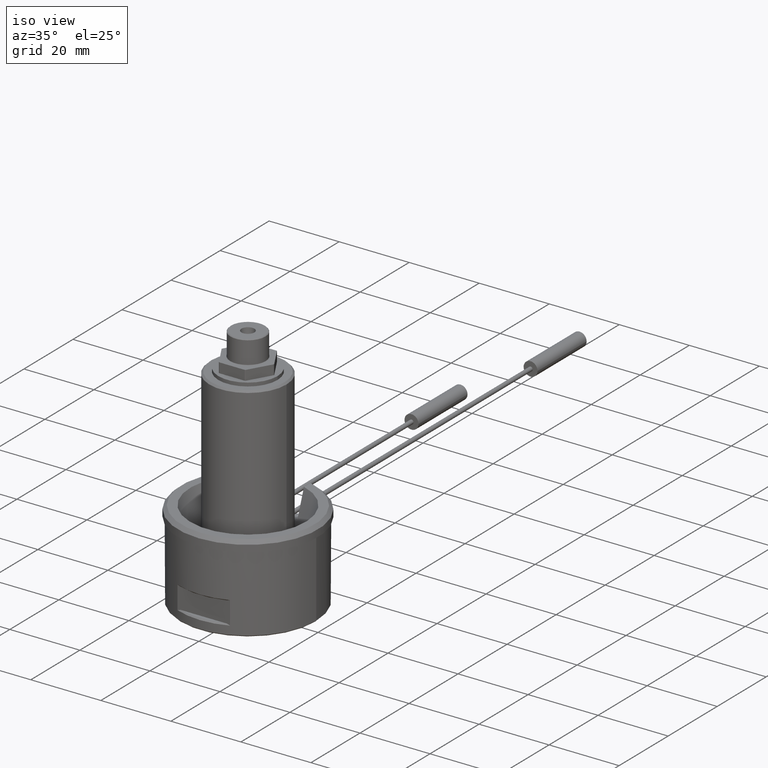
[diagram: clean part render]
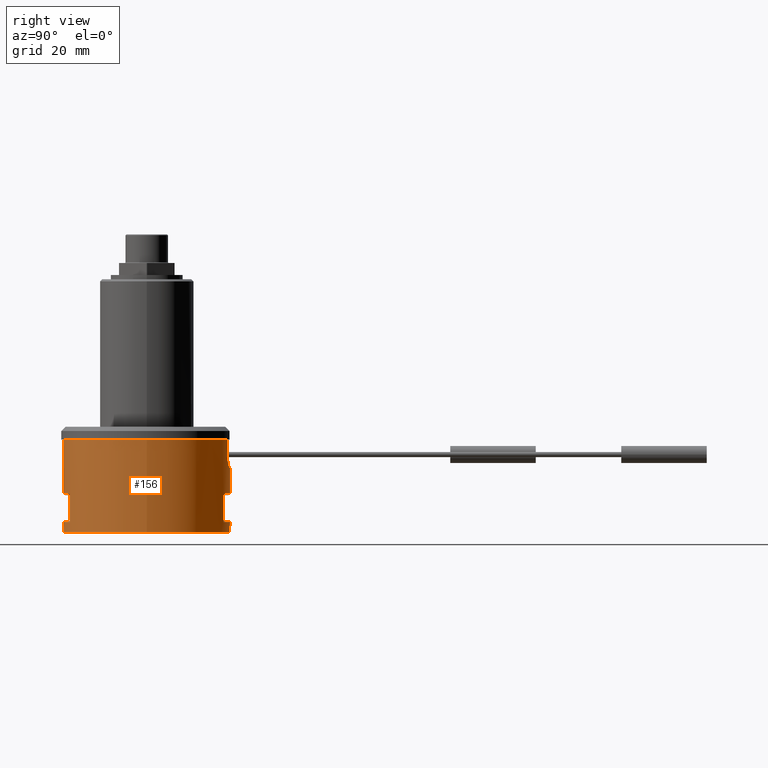
[diagram: tour spotlight — one face highlighted and labeled with its STEP entity id]
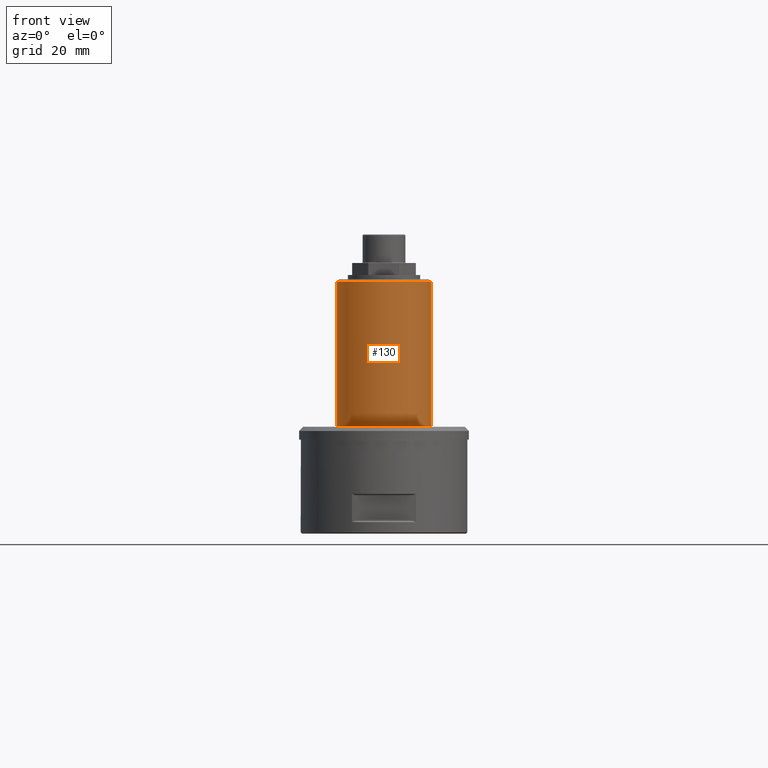
[diagram: tour spotlight — one face highlighted and labeled with its STEP entity id]
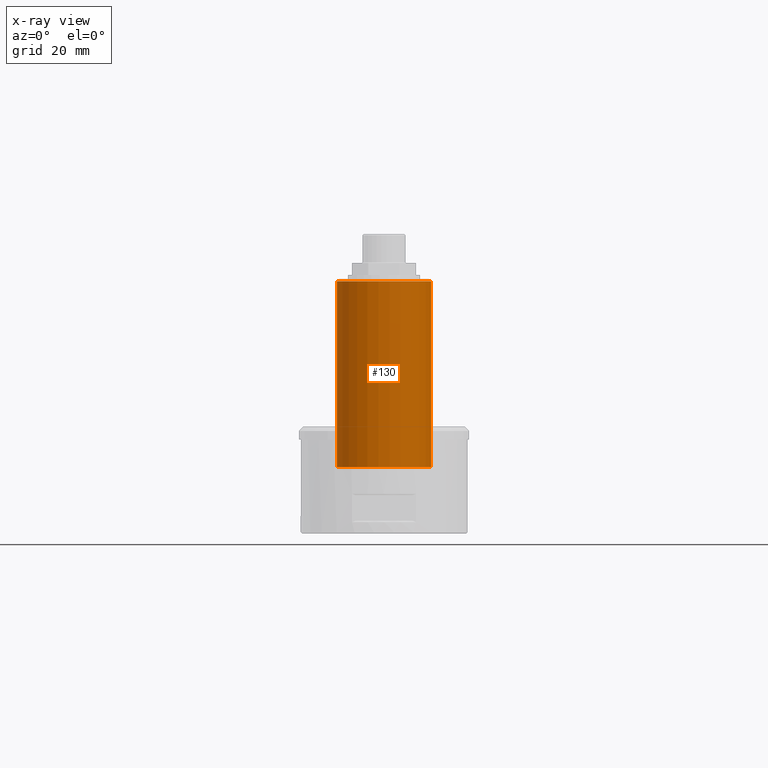
[diagram: x-ray of the same camera — body ghosted, this tour face saturated]
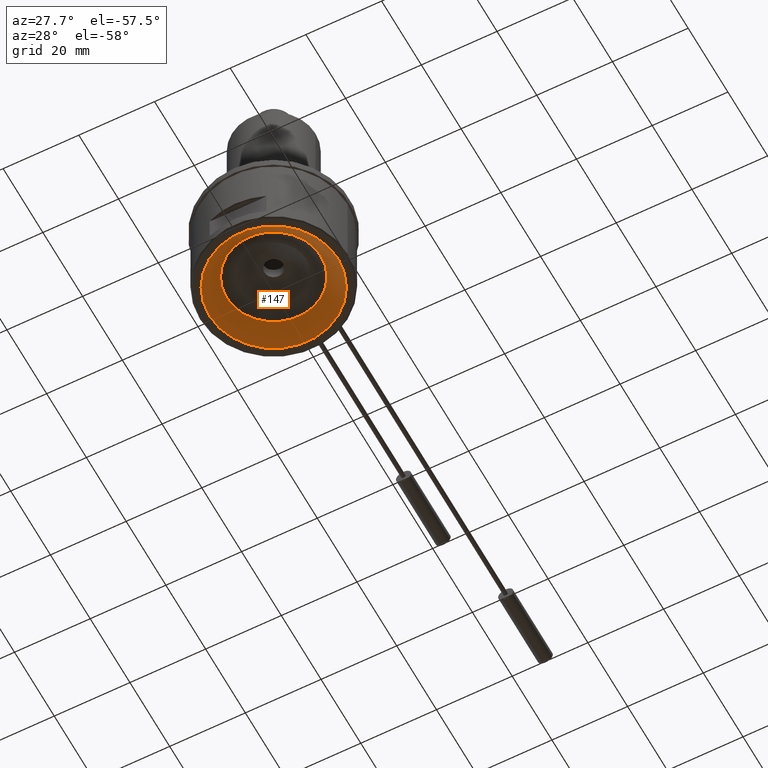
[diagram: tour spotlight — one face highlighted and labeled with its STEP entity id]
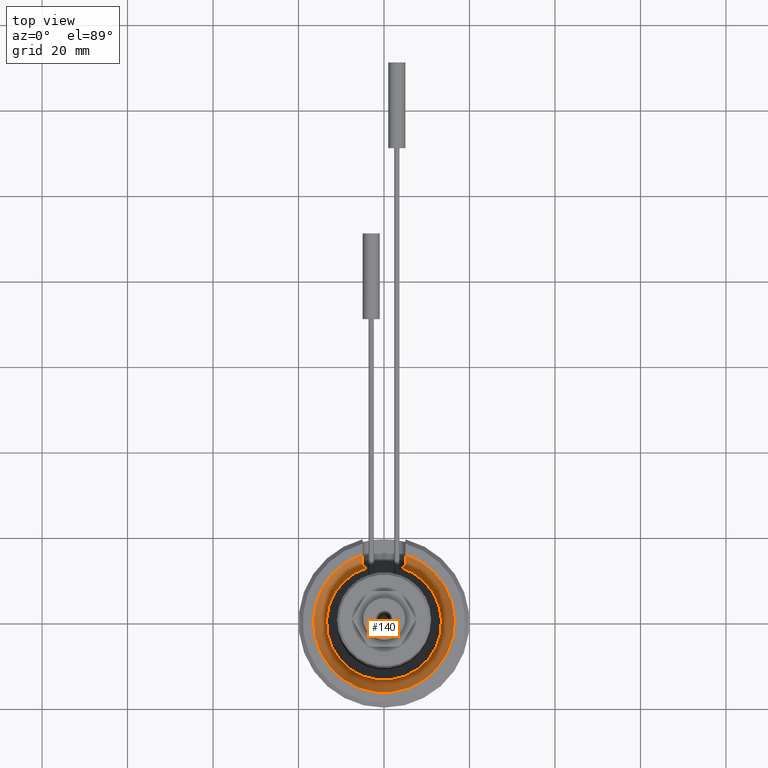
[diagram: tour spotlight — one face highlighted and labeled with its STEP entity id]
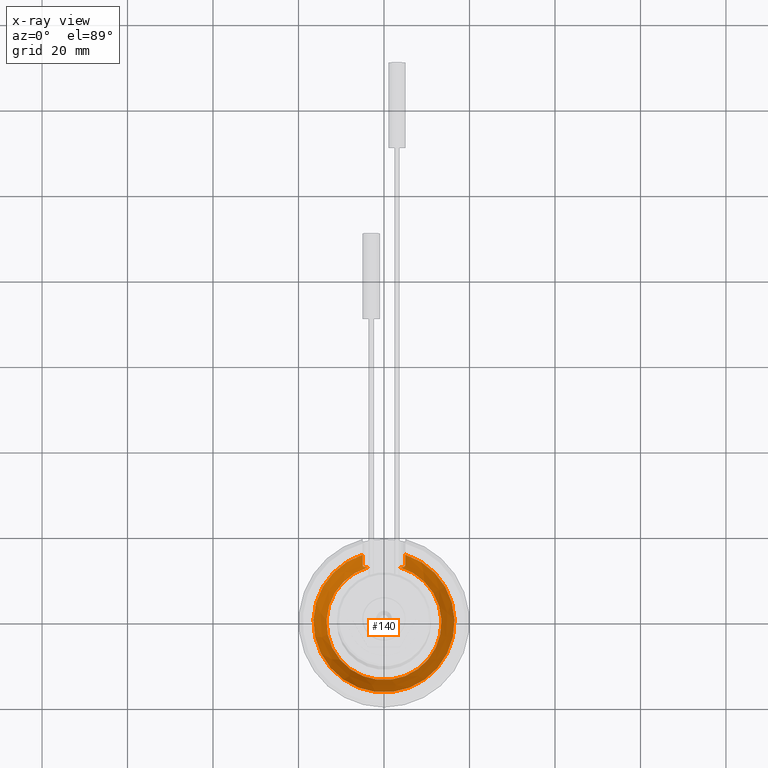
[diagram: x-ray of the same camera — body ghosted, this tour face saturated]
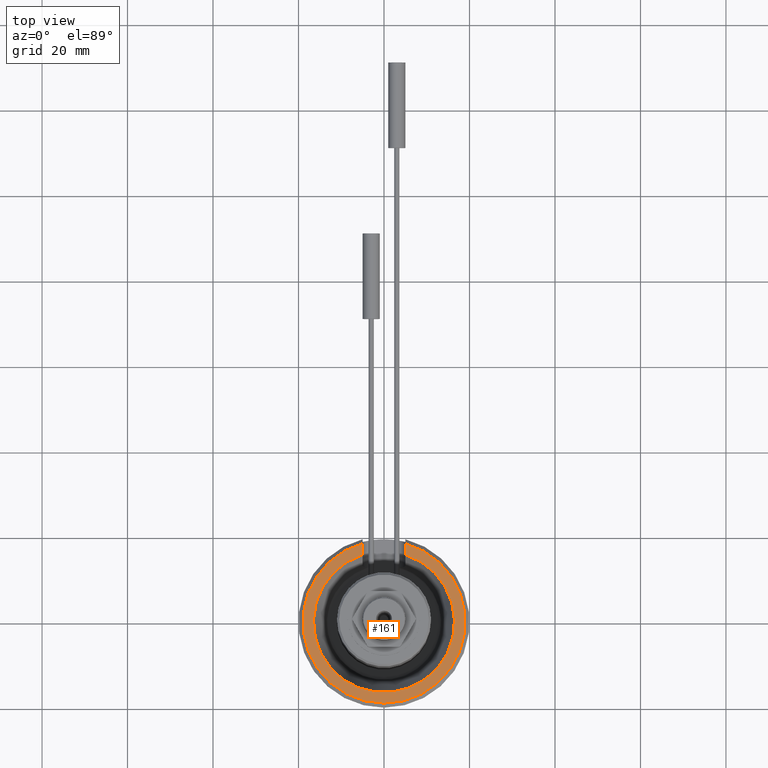
[diagram: tour spotlight — one face highlighted and labeled with its STEP entity id]
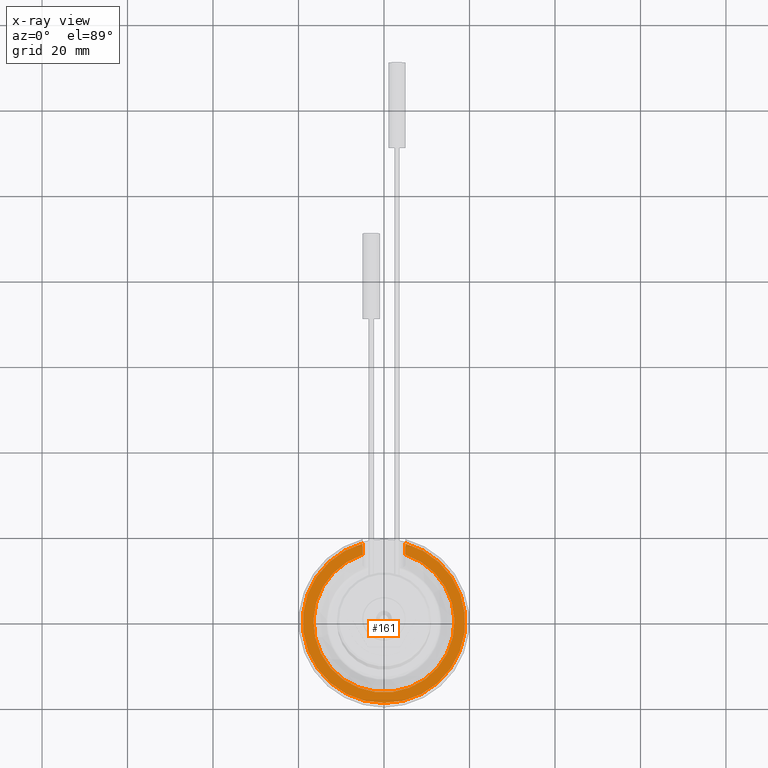
[diagram: x-ray of the same camera — body ghosted, this tour face saturated]
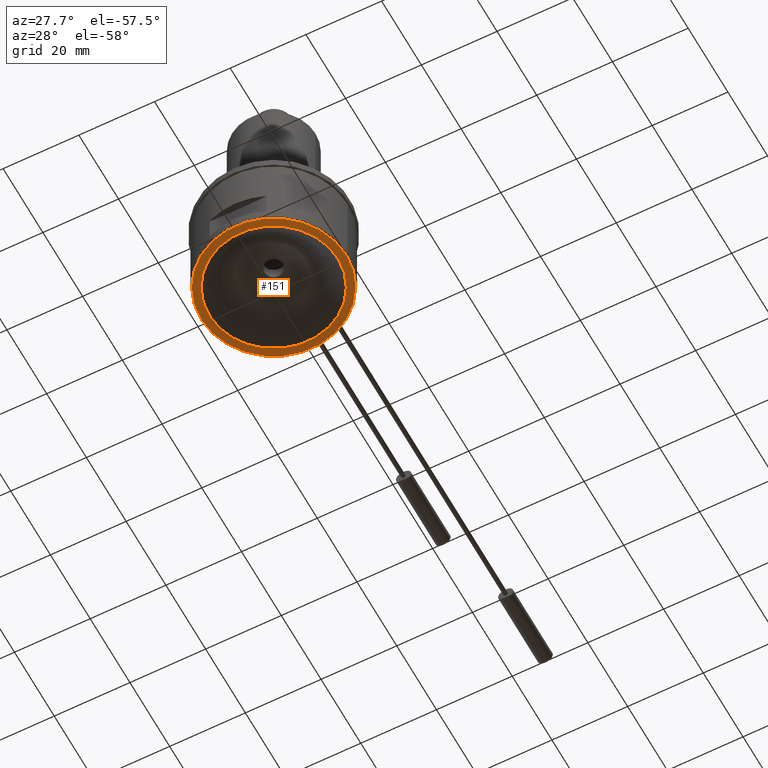
[diagram: tour spotlight — one face highlighted and labeled with its STEP entity id]
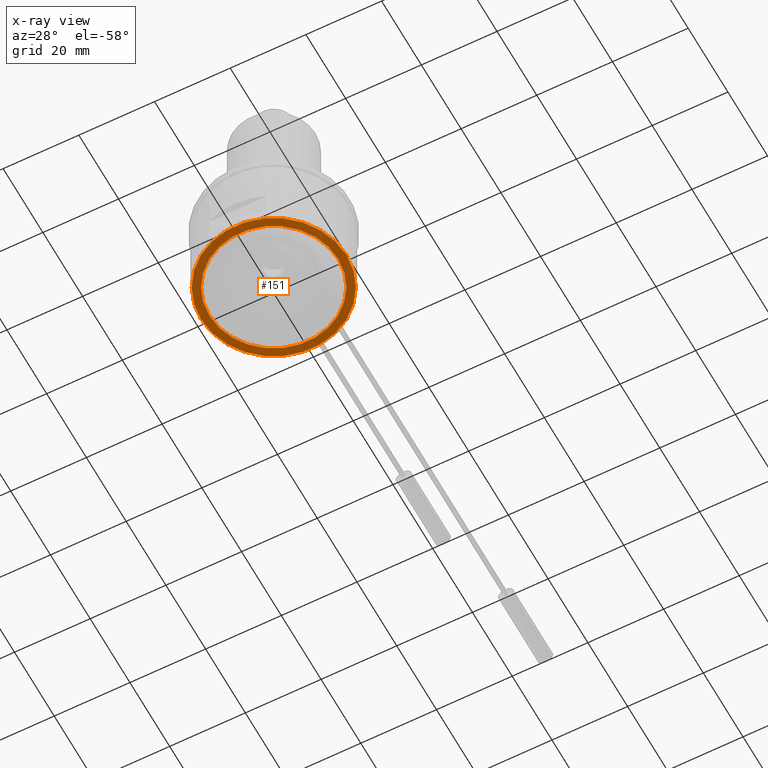
[diagram: x-ray of the same camera — body ghosted, this tour face saturated]
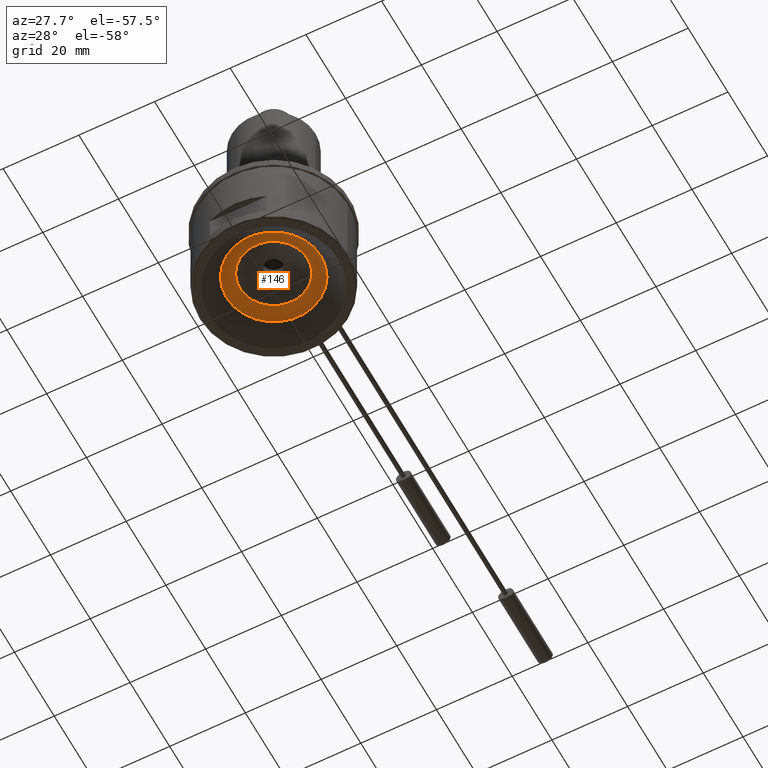
[diagram: tour spotlight — one face highlighted and labeled with its STEP entity id]
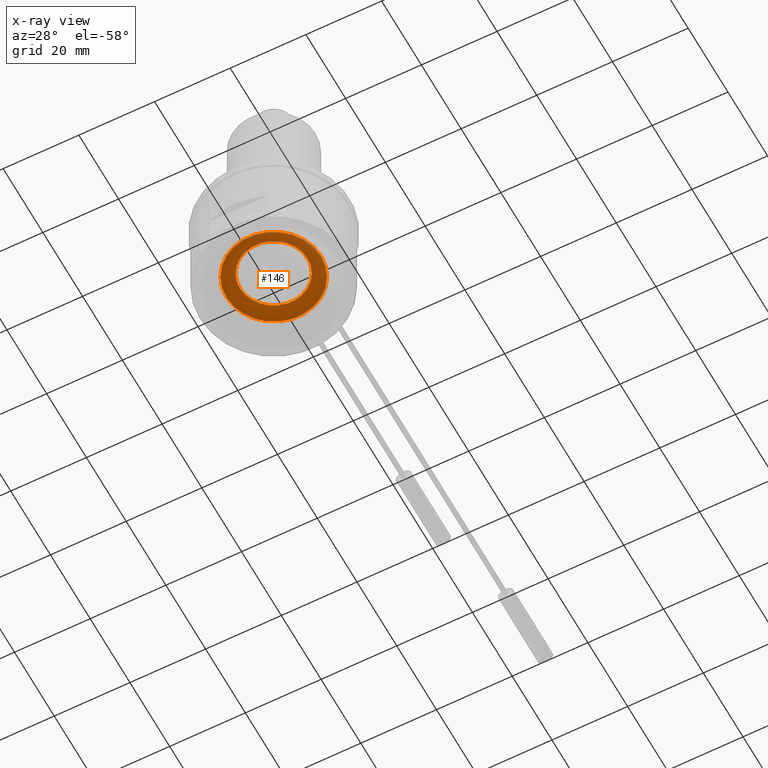
[diagram: x-ray of the same camera — body ghosted, this tour face saturated]
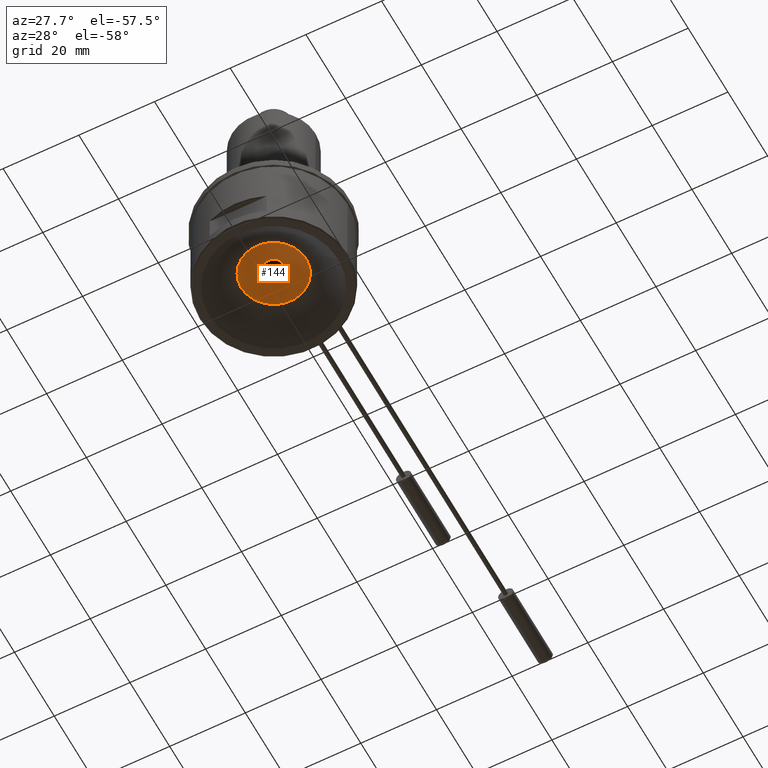
[diagram: tour spotlight — one face highlighted and labeled with its STEP entity id]
A machine part: a face-by-face anatomy tour. The part has 63 B-rep faces; the first image is the clean iso view, then the 8 largest visible faces are spotlighted one at a time (largest first), each with its STEP entity span.

Face 1 — right view, entity #156. In plain terms, the highlighted cylindrical surface (bore or boss wall) has radius 19.5 mm, axis along (0, 0, 1).
Definition (entity closure, byte-faithful):
#66=B_SPLINE_CURVE_WITH_KNOTS('',3,(#1736,#1737,#1738,#1739,#1740,#1741,
#1742,#1743,#1744,#1745,#1746,#1747,#1748,#1749,#1750,#1751),
 .UNSPECIFIED.,.F.,.F.,(4,3,3,3,3,4),(0.,0.208859270447399,0.417456296238441,
0.630055906062743,0.847987775070674,1.),.UNSPECIFIED.);
#67=B_SPLINE_CURVE_WITH_KNOTS('',3,(#1752,#1753,#1754,#1755,#1756,#1757,
#1758,#1759,#1760,#1761,#1762,#1763,#1764,#1765,#1766,#1767),
 .UNSPECIFIED.,.F.,.F.,(4,3,3,3,3,4),(0.,0.215976202929395,0.431772849622374,
0.65007420206776,0.867184707585039,1.),.UNSPECIFIED.);
#80=CYLINDRICAL_SURFACE('',#1030,19.5);
#156=ADVANCED_FACE('',(#338,#339,#340,#341),#80,.T.);
#242=LINE('',#1664,#286);
#243=LINE('',#1676,#287);
#245=LINE('',#1695,#289);
#247=LINE('',#1710,#291);
#250=LINE('',#1734,#294);
#251=LINE('',#1769,#295);
#286=VECTOR('',#1220,1.);
#287=VECTOR('',#1221,1.);
#289=VECTOR('',#1233,1.);
#291=VECTOR('',#1235,1.);
#294=VECTOR('',#1252,1.);
#295=VECTOR('',#1253,1.);
#338=FACE_BOUND('',#412,.T.);
#339=FACE_BOUND('',#413,.T.);
#340=FACE_BOUND('',#414,.T.);
#341=FACE_BOUND('',#415,.T.);
#412=EDGE_LOOP('',(#575));
#413=EDGE_LOOP('',(#576,#577,#578,#579,#580,#581));
#414=EDGE_LOOP('',(#582,#583,#584,#585));
#415=EDGE_LOOP('',(#586,#587,#588,#589));
#575=ORIENTED_EDGE('',*,*,#869,.T.);
#576=ORIENTED_EDGE('',*,*,#870,.F.);
#577=ORIENTED_EDGE('',*,*,#871,.T.);
#578=ORIENTED_EDGE('',*,*,#872,.T.);
#579=ORIENTED_EDGE('',*,*,#866,.T.);
#580=ORIENTED_EDGE('',*,*,#873,.T.);
#581=ORIENTED_EDGE('',*,*,#874,.T.);
#582=ORIENTED_EDGE('',*,*,#875,.T.);
#583=ORIENTED_EDGE('',*,*,#862,.T.);
#584=ORIENTED_EDGE('',*,*,#876,.T.);
#585=ORIENTED_EDGE('',*,*,#858,.T.);
#586=ORIENTED_EDGE('',*,*,#852,.F.);
#587=ORIENTED_EDGE('',*,*,#877,.T.);
#588=ORIENTED_EDGE('',*,*,#849,.F.);
#589=ORIENTED_EDGE('',*,*,#878,.T.);
#748=VERTEX_POINT('',#1665);
#749=VERTEX_POINT('',#1666);
#750=VERTEX_POINT('',#1675);
#751=VERTEX_POINT('',#1677);
#755=VERTEX_POINT('',#1696);
#756=VERTEX_POINT('',#1697);
#759=VERTEX_POINT('',#1709);
#760=VERTEX_POINT('',#1711);
#761=VERTEX_POINT('',#1724);
#762=VERTEX_POINT('',#1725);
#763=VERTEX_POINT('',#1730);
#764=VERTEX_POINT('',#1732);
#765=VERTEX_POINT('',#1733);
#766=VERTEX_POINT('',#1735);
#767=VERTEX_POINT('',#1768);
#849=EDGE_CURVE('',#748,#749,#242,.T.);
#852=EDGE_CURVE('',#750,#751,#243,.T.);
#858=EDGE_CURVE('',#755,#756,#245,.T.);
#862=EDGE_CURVE('',#760,#759,#247,.T.);
#866=EDGE_CURVE('',#761,#762,#936,.T.);
#869=EDGE_CURVE('',#763,#763,#937,.T.);
#870=EDGE_CURVE('',#764,#765,#938,.T.);
#871=EDGE_CURVE('',#764,#766,#250,.T.);
#872=EDGE_CURVE('',#766,#761,#66,.T.);
#873=EDGE_CURVE('',#762,#767,#67,.T.);
#874=EDGE_CURVE('',#767,#765,#251,.T.);
#875=EDGE_CURVE('',#756,#760,#939,.T.);
#876=EDGE_CURVE('',#759,#755,#940,.T.);
#877=EDGE_CURVE('',#750,#749,#941,.T.);
#878=EDGE_CURVE('',#748,#751,#942,.T.);
#936=CIRCLE('',#1022,19.5);
#937=CIRCLE('',#1024,19.5);
#938=CIRCLE('',#1025,19.5000000000001);
#939=CIRCLE('',#1026,19.5);
#940=CIRCLE('',#1027,19.5);
#941=CIRCLE('',#1028,19.5);
#942=CIRCLE('',#1029,19.5);
#1022=AXIS2_PLACEMENT_3D('',#1723,#1242,#1243);
#1024=AXIS2_PLACEMENT_3D('',#1729,#1248,#1249);
#1025=AXIS2_PLACEMENT_3D('',#1731,#1250,#1251);
#1026=AXIS2_PLACEMENT_3D('',#1770,#1254,#1255);
#1027=AXIS2_PLACEMENT_3D('',#1771,#1256,#1257);
#1028=AXIS2_PLACEMENT_3D('',#1772,#1258,#1259);
#1029=AXIS2_PLACEMENT_3D('',#1773,#1260,#1261);
#1030=AXIS2_PLACEMENT_3D('',#1774,#1262,#1263);
#1220=DIRECTION('',(0.,0.,1.));
#1221=DIRECTION('',(0.,0.,-1.));
#1233=DIRECTION('',(0.,0.,1.));
#1235=DIRECTION('',(0.,0.,-1.));
#1242=DIRECTION('',(0.,0.,-1.));
#1243=DIRECTION('',(-1.,0.,0.));
#1248=DIRECTION('',(0.,0.,1.));
#1249=DIRECTION('',(1.,0.,0.));
#1250=DIRECTION('',(0.,0.,1.));
#1251=DIRECTION('',(1.,0.,0.));
#1252=DIRECTION('',(0.,0.,-1.));
#1253=DIRECTION('',(0.,0.,1.));
#1254=DIRECTION('',(0.,0.,1.));
#1255=DIRECTION('',(1.,0.,0.));
#1256=DIRECTION('',(0.,0.,-1.));
#1257=DIRECTION('',(-1.,0.,0.));
#1258=DIRECTION('',(0.,0.,1.));
#1259=DIRECTION('',(-1.,0.,0.));
#1260=DIRECTION('',(0.,0.,-1.));
#1261=DIRECTION('',(1.,0.,0.));
#1262=DIRECTION('',(0.,0.,1.));
#1263=DIRECTION('',(1.,0.,0.));
#1664=CARTESIAN_POINT('',(-7.50000000000002,18.,0.));
#1665=CARTESIAN_POINT('',(-7.50000000000002,18.,2.69999999999999));
#1666=CARTESIAN_POINT('',(-7.50000000000002,18.,9.29999999998456));
#1675=CARTESIAN_POINT('',(7.50000000000002,18.,9.29999999998456));
#1676=CARTESIAN_POINT('',(7.50000000000002,18.,0.));
#1677=CARTESIAN_POINT('',(7.50000000000002,18.,2.69999999999999));
#1695=CARTESIAN_POINT('',(-7.50000000000002,-18.,0.));
#1696=CARTESIAN_POINT('',(-7.50000000000002,-18.,2.69999999999999));
#1697=CARTESIAN_POINT('',(-7.50000000000002,-18.,9.29999999998456));
#1709=CARTESIAN_POINT('',(7.50000000000002,-18.,2.69999999999999));
#1710=CARTESIAN_POINT('',(7.50000000000002,-18.,0.));
#1711=CARTESIAN_POINT('',(7.50000000000002,-18.,9.29999999998456));
#1723=CARTESIAN_POINT('',(0.,0.,15.5));
#1724=CARTESIAN_POINT('',(-2.,19.3971647412708,15.5));
#1725=CARTESIAN_POINT('',(2.,19.3971647412708,15.5));
#1729=CARTESIAN_POINT('',(0.,0.,0.29999999999999));
#1730=CARTESIAN_POINT('',(19.5,0.,0.29999999999999));
#1731=CARTESIAN_POINT('',(0.,0.,22.));
#1732=CARTESIAN_POINT('',(-5.,18.8480768249708,22.));
#1733=CARTESIAN_POINT('',(5.,18.8480768249708,22.));
#1734=CARTESIAN_POINT('',(-5.,18.8480768249708,0.));
#1735=CARTESIAN_POINT('',(-5.,18.8480768249708,18.5));
#1736=CARTESIAN_POINT('',(-5.,18.8480768249708,18.5));
#1737=CARTESIAN_POINT('',(-5.,18.8480768249708,18.1712240801533));
#1738=CARTESIAN_POINT('',(-4.94431953548575,18.8630780703131,17.8379299438462));
#1739=CARTESIAN_POINT('',(-4.83815628129102,18.8902684945928,17.5279563163272));
#1740=CARTESIAN_POINT('',(-4.73206839705938,18.9174396151944,17.2182027527186));
#1741=CARTESIAN_POINT('',(-4.57289213055614,18.9573288779685,16.9232723225049));
#1742=CARTESIAN_POINT('',(-4.37398378364309,19.0031120046278,16.6658241646452));
#1743=CARTESIAN_POINT('',(-4.17127404465591,19.049770105201,16.4034558442987));
#1744=CARTESIAN_POINT('',(-3.92191579445692,19.1036067398235,16.1728608493464));
#1745=CARTESIAN_POINT('',(-3.64542788517535,19.1562223711771,15.9915010315555));
#1746=CARTESIAN_POINT('',(-3.36220663328017,19.210119357197,15.8057245367652));
#1747=CARTESIAN_POINT('',(-3.04260585593299,19.264051176149,15.6665471574642));
#1748=CARTESIAN_POINT('',(-2.71250280399398,19.3104202061562,15.5858380699933));
#1749=CARTESIAN_POINT('',(-2.48058686127955,19.3429970552453,15.5291354009434));
#1750=CARTESIAN_POINT('',(-2.23968870841728,19.3724509532905,15.5));
#1751=CARTESIAN_POINT('',(-2.,19.3971647412708,15.5));
#1752=CARTESIAN_POINT('',(2.,19.3971647412708,15.5));
#1753=CARTESIAN_POINT('',(2.33818486907352,19.3622952256912,15.5));
#1754=CARTESIAN_POINT('',(2.68002074798442,19.3176233036949,15.558789140847));
#1755=CARTESIAN_POINT('',(2.99726822234027,19.2682740068577,15.670608529611));
#1756=CARTESIAN_POINT('',(3.31435435932037,19.2189498067879,15.7823710522114));
#1757=CARTESIAN_POINT('',(3.61568525744173,19.1637201320182,15.9500573681033));
#1758=CARTESIAN_POINT('',(3.87746398049628,19.1106062980732,16.1601006427756));
#1759=CARTESIAN_POINT('',(4.14216329357637,19.0568998883381,16.3724873099353));
#1760=CARTESIAN_POINT('',(4.37381764980178,19.004042380216,16.6342027021801));
#1761=CARTESIAN_POINT('',(4.55286851589345,18.9610492398756,16.9242898932355));
#1762=CARTESIAN_POINT('',(4.73086724917875,18.9183087344114,17.2126724834862));
#1763=CARTESIAN_POINT('',(4.86180379042969,18.8843408016981,17.5375010705628));
#1764=CARTESIAN_POINT('',(4.93331544810629,18.8656406912004,17.8709845137829));
#1765=CARTESIAN_POINT('',(4.97747479356462,18.854093138446,18.0769147222586));
#1766=CARTESIAN_POINT('',(5.,18.8480768249708,18.2890719446617));
#1767=CARTESIAN_POINT('',(5.,18.8480768249708,18.5));
#1768=CARTESIAN_POINT('',(5.,18.8480768249708,18.5));
#1769=CARTESIAN_POINT('',(5.,18.8480768249708,0.));
#1770=CARTESIAN_POINT('',(0.,0.,9.29999999998456));
#1771=CARTESIAN_POINT('',(0.,0.,2.69999999999999));
#1772=CARTESIAN_POINT('',(0.,0.,9.29999999998456));
#1773=CARTESIAN_POINT('',(0.,0.,2.69999999999999));
#1774=CARTESIAN_POINT('',(0.,0.,0.));

Face 2 — front view, entity #130. An x-ray twin of the same camera follows (body ghosted, this face saturated) — the face is partly hidden behind the body. In plain terms, the highlighted cylindrical surface (bore or boss wall) has radius 11 mm, axis along (0, 0, 1).
Definition (entity closure, byte-faithful):
#50=B_SPLINE_CURVE_WITH_KNOTS('',3,(#1412,#1413,#1414,#1415,#1416,#1417,
#1418,#1419,#1420,#1421,#1422,#1423,#1424,#1425,#1426,#1427,#1428,#1429,
#1430,#1431,#1432,#1433,#1434,#1435,#1436,#1437,#1438,#1439,#1440,#1441,
#1442,#1443,#1444,#1445,#1446,#1447,#1448,#1449,#1450,#1451,#1452,#1453,
#1454,#1455,#1456,#1457,#1458,#1459,#1460,#1461,#1462,#1463,#1464,#1465,
#1466,#1467,#1468,#1469),.UNSPECIFIED.,.T.,.F.,(1,3,3,3,3,3,3,3,3,3,3,3,
3,3,3,3,3,3,3,3,3,1),(-0.033476065960702,0.,0.0569276184208162,0.11388798171723,
0.170189178404946,0.223994773815215,0.275023318518955,0.32479447673683,
0.375435942673917,0.428444094596675,0.484019015101014,0.541000746772207,
0.597629402742916,0.652691800182208,0.705997861087889,0.758026453272304,
0.809447894307852,0.860920961920237,0.913080990616137,0.966523934039298,
1.,1.05692761842082),.UNSPECIFIED.);
#51=B_SPLINE_CURVE_WITH_KNOTS('',3,(#1471,#1472,#1473,#1474,#1475,#1476,
#1477,#1478,#1479,#1480,#1481,#1482,#1483,#1484,#1485,#1486,#1487,#1488,
#1489,#1490,#1491,#1492,#1493,#1494,#1495,#1496,#1497,#1498,#1499,#1500,
#1501,#1502,#1503,#1504,#1505,#1506,#1507,#1508,#1509,#1510,#1511,#1512,
#1513,#1514,#1515,#1516,#1517,#1518,#1519,#1520,#1521,#1522,#1523,#1524,
#1525,#1526,#1527,#1528),.UNSPECIFIED.,.T.,.F.,(1,3,3,3,3,3,3,3,3,3,3,3,
3,3,3,3,3,3,3,3,3,1),(-0.0368720802815016,0.,0.0557742989657597,0.111633516855791,
0.166177446941804,0.219065034009753,0.270861475775484,0.322242468032284,
0.37385818799038,0.426338903139108,0.480247896041717,0.535857703218907,
0.592750324818179,0.649530104049342,0.704312651862769,0.756186565040042,
0.806141649324129,0.856262775636491,0.908363747585336,0.963127919718498,
1.,1.05577429896576),.UNSPECIFIED.);
#75=CYLINDRICAL_SURFACE('',#973,11.);
#130=ADVANCED_FACE('',(#306,#307,#308,#309),#75,.T.);
#306=FACE_BOUND('',#369,.T.);
#307=FACE_BOUND('',#370,.T.);
#308=FACE_BOUND('',#371,.T.);
#309=FACE_BOUND('',#372,.T.);
#369=EDGE_LOOP('',(#489));
#370=EDGE_LOOP('',(#490));
#371=EDGE_LOOP('',(#491));
#372=EDGE_LOOP('',(#492));
#489=ORIENTED_EDGE('',*,*,#808,.T.);
#490=ORIENTED_EDGE('',*,*,#809,.T.);
#491=ORIENTED_EDGE('',*,*,#810,.F.);
#492=ORIENTED_EDGE('',*,*,#811,.F.);
#715=VERTEX_POINT('',#1409);
#716=VERTEX_POINT('',#1411);
#717=VERTEX_POINT('',#1470);
#718=VERTEX_POINT('',#1529);
#808=EDGE_CURVE('',#715,#715,#910,.T.);
#809=EDGE_CURVE('',#716,#716,#911,.T.);
#810=EDGE_CURVE('',#717,#717,#50,.T.);
#811=EDGE_CURVE('',#718,#718,#51,.T.);
#910=CIRCLE('',#971,11.);
#911=CIRCLE('',#972,11.0000000000001);
#971=AXIS2_PLACEMENT_3D('',#1408,#1124,#1125);
#972=AXIS2_PLACEMENT_3D('',#1410,#1126,#1127);
#973=AXIS2_PLACEMENT_3D('',#1530,#1128,#1129);
#1124=DIRECTION('',(0.,0.,-1.));
#1125=DIRECTION('',(-1.,0.,0.));
#1126=DIRECTION('',(0.,0.,1.));
#1127=DIRECTION('',(1.,0.,0.));
#1128=DIRECTION('',(0.,0.,1.));
#1129=DIRECTION('',(1.,0.,0.));
#1408=CARTESIAN_POINT('',(0.,0.,59.));
#1409=CARTESIAN_POINT('',(-11.,0.,59.));
#1410=CARTESIAN_POINT('',(0.,0.,15.5));
#1411=CARTESIAN_POINT('',(11.0000000000001,0.,15.5));
#1412=CARTESIAN_POINT('',(-2.99999999999991,10.5830052442584,17.8999999999996));
#1413=CARTESIAN_POINT('',(-3.06981681712979,10.5632140368881,17.8999999999996));
#1414=CARTESIAN_POINT('',(-3.14038450659972,10.5424227737473,17.9124970988472));
#1415=CARTESIAN_POINT('',(-3.20591448775793,10.5224575217571,17.9364405765748));
#1416=CARTESIAN_POINT('',(-3.27146261720385,10.5024867404637,17.9603906853607));
#1417=CARTESIAN_POINT('',(-3.33382981085157,10.482784709257,17.9964888354275));
#1418=CARTESIAN_POINT('',(-3.3876192775582,10.4653731720525,18.0420138695711));
#1419=CARTESIAN_POINT('',(-3.44075567997196,10.4481730303855,18.0869861788774));
#1420=CARTESIAN_POINT('',(-3.48705359081985,10.4327279905899,18.1425344552966));
#1421=CARTESIAN_POINT('',(-3.5219399223933,10.4209375385832,18.2040629840455));
#1422=CARTESIAN_POINT('',(-3.55529059017035,10.4096660912832,18.262883084313));
#1423=CARTESIAN_POINT('',(-3.57915482046363,10.4014329403697,18.3289382027011));
#1424=CARTESIAN_POINT('',(-3.59097724228668,10.39734977989,18.3963375714194));
#1425=CARTESIAN_POINT('',(-3.60220237963041,10.39347290611,18.4603318343604));
#1426=CARTESIAN_POINT('',(-3.60289005001189,10.3932330618097,18.5273519849324));
#1427=CARTESIAN_POINT('',(-3.59296868398482,10.396661773661,18.5915867884212));
#1428=CARTESIAN_POINT('',(-3.58328137018419,10.4000095997109,18.6543062462681));
#1429=CARTESIAN_POINT('',(-3.56326033680526,10.4069246310301,18.716062895263));
#1430=CARTESIAN_POINT('',(-3.53478046430455,10.4165890323642,18.7720475234187));
#1431=CARTESIAN_POINT('',(-3.5057920601981,10.4264259995526,18.8290318032705));
#1432=CARTESIAN_POINT('',(-3.46732907570817,10.4393411650476,18.8815408372879));
#1433=CARTESIAN_POINT('',(-3.42260264746866,10.4539844613209,18.9259190091467));
#1434=CARTESIAN_POINT('',(-3.37580324197967,10.4693064440271,18.9723540172935));
#1435=CARTESIAN_POINT('',(-3.32095149567916,10.4868989700489,19.0111162295878));
#1436=CARTESIAN_POINT('',(-3.26232257871943,10.5051059676891,19.0396173317213));
#1437=CARTESIAN_POINT('',(-3.20090536269367,10.524178861497,19.0694739014394));
#1438=CARTESIAN_POINT('',(-3.1336983167243,10.5444253513799,19.088868258931));
#1439=CARTESIAN_POINT('',(-3.06598618430008,10.564077277154,19.0963604811534));
#1440=CARTESIAN_POINT('',(-2.99661772046592,10.5842099159223,19.1040359733831));
#1441=CARTESIAN_POINT('',(-2.92478068762943,10.6042751642352,19.0994009585023));
#1442=CARTESIAN_POINT('',(-2.85653800704422,10.622626352005,19.0825964783426));
#1443=CARTESIAN_POINT('',(-2.78874380432905,10.6408569392718,19.0659024340187));
#1444=CARTESIAN_POINT('',(-2.72256330115455,10.6579214838165,19.0366771898524));
#1445=CARTESIAN_POINT('',(-2.66401663073763,10.6725355652325,18.9971068050018));
#1446=CARTESIAN_POINT('',(-2.60707805025483,10.6867482445353,18.9586232921649));
#1447=CARTESIAN_POINT('',(-2.55573615457011,10.6990643438209,18.9092216508164));
#1448=CARTESIAN_POINT('',(-2.51483547133773,10.7086695042895,18.8530090368927));
#1449=CARTESIAN_POINT('',(-2.47521965706406,10.7179729247491,18.798562306495));
#1450=CARTESIAN_POINT('',(-2.44427888225215,10.7250125539229,18.7361680065076));
#1451=CARTESIAN_POINT('',(-2.42492917387903,10.7293857467084,18.6711535712293));
#1452=CARTESIAN_POINT('',(-2.40603383409633,10.733656248466,18.6076658006813));
#1453=CARTESIAN_POINT('',(-2.39766002012662,10.7355128144675,18.5399010011442));
#1454=CARTESIAN_POINT('',(-2.40058147454186,10.7348595046272,18.4735910746605));
#1455=CARTESIAN_POINT('',(-2.40346989220308,10.7342135826266,18.4080310023314));
#1456=CARTESIAN_POINT('',(-2.41746976120564,10.7310967887802,18.3420888473413));
#1457=CARTESIAN_POINT('',(-2.44132064172829,10.725667975668,18.2811910087746));
#1458=CARTESIAN_POINT('',(-2.46520089217958,10.7202324775258,18.2202181807259));
#1459=CARTESIAN_POINT('',(-2.49958709380877,10.712325527574,18.162649352121));
#1460=CARTESIAN_POINT('',(-2.5414784747202,10.7023776406242,18.1130141981221));
#1461=CARTESIAN_POINT('',(-2.58393260100764,10.6922961193263,18.0627122732317));
#1462=CARTESIAN_POINT('',(-2.63520668837192,10.6798406558194,18.0192069291159));
#1463=CARTESIAN_POINT('',(-2.69099725920307,10.6657645647633,17.9856875403221));
#1464=CARTESIAN_POINT('',(-2.74815439445356,10.6513436863191,17.9513471094883));
#1465=CARTESIAN_POINT('',(-2.81154660528336,10.63483306504,17.9265595067595));
#1466=CARTESIAN_POINT('',(-2.87606909114748,10.6173549711284,17.912938563836));
#1467=CARTESIAN_POINT('',(-2.9168172067377,10.6063169681521,17.9043364811781));
#1468=CARTESIAN_POINT('',(-2.95854912963758,10.5947554615376,17.9));
#1469=CARTESIAN_POINT('',(-2.99999999999991,10.5830052442584,17.8999999999996));
#1470=CARTESIAN_POINT('',(-2.99999999999991,10.5830052442584,17.8999999999996));
#1471=CARTESIAN_POINT('',(3.,10.5830052442583,17.9));
#1472=CARTESIAN_POINT('',(2.93157776268094,10.6024011254111,17.9));
#1473=CARTESIAN_POINT('',(2.86200103123959,10.6213682036752,17.9120184260052));
#1474=CARTESIAN_POINT('',(2.79703438724802,10.6384490710137,17.9353718391364));
#1475=CARTESIAN_POINT('',(2.7320103370553,10.6555450314467,17.9587458879455));
#1476=CARTESIAN_POINT('',(2.66978703597953,10.6712370364003,17.9941809411905));
#1477=CARTESIAN_POINT('',(2.61603314063601,10.6843984672556,18.0389474532007));
#1478=CARTESIAN_POINT('',(2.56353945073258,10.6972513417419,18.0826644598382));
#1479=CARTESIAN_POINT('',(2.51763653283456,10.7080714805243,18.1365556317496));
#1480=CARTESIAN_POINT('',(2.48266645677231,10.716173163234,18.1960822396577));
#1481=CARTESIAN_POINT('',(2.44874076668953,10.7240328881105,18.253831077492));
#1482=CARTESIAN_POINT('',(2.42414752977925,10.7295705886034,18.3185251548311));
#1483=CARTESIAN_POINT('',(2.41119404172678,10.7324807613683,18.3846416734607));
#1484=CARTESIAN_POINT('',(2.39850192828665,10.7353322128625,18.4494240974158));
#1485=CARTESIAN_POINT('',(2.39662628451943,10.7357472804405,18.5173773051816));
#1486=CARTESIAN_POINT('',(2.40573921106562,10.7337048053475,18.5827895810781));
#1487=CARTESIAN_POINT('',(2.41478198245278,10.7316780540909,18.6476982856363));
#1488=CARTESIAN_POINT('',(2.43488137661748,10.7271739203114,18.7118830111512));
#1489=CARTESIAN_POINT('',(2.46424264963384,10.720424812652,18.7701186064096));
#1490=CARTESIAN_POINT('',(2.49374362150502,10.7136435932171,18.8286312825003));
#1491=CARTESIAN_POINT('',(2.53337223225895,10.7044054890208,18.8827187066261));
#1492=CARTESIAN_POINT('',(2.57970577353719,10.6932276755888,18.9281971078861));
#1493=CARTESIAN_POINT('',(2.62681766353679,10.6818620881047,18.9744394925261));
#1494=CARTESIAN_POINT('',(2.68209331660847,10.6681802021503,19.0130234750021));
#1495=CARTESIAN_POINT('',(2.74094962383965,10.6530368984423,19.0411958080133));
#1496=CARTESIAN_POINT('',(2.80139777059471,10.6374840258962,19.0701300956099));
#1497=CARTESIAN_POINT('',(2.86720740483468,10.6199717562029,19.0888688729684));
#1498=CARTESIAN_POINT('',(2.9331298174092,10.6017333240477,19.0962620050618));
#1499=CARTESIAN_POINT('',(3.00110249062967,10.5829276562859,19.1038850718191));
#1500=CARTESIAN_POINT('',(3.07101520825842,10.5628431015272,19.0996660215352));
#1501=CARTESIAN_POINT('',(3.13734201604683,10.5431060449161,19.0840694912664));
#1502=CARTESIAN_POINT('',(3.20515211535748,10.5229276010331,19.0681241698844));
#1503=CARTESIAN_POINT('',(3.27110094765836,10.5025556331557,19.0398313705543));
#1504=CARTESIAN_POINT('',(3.32966917555234,10.4839545583418,19.0013165015144));
#1505=CARTESIAN_POINT('',(3.38808231784845,10.4654027381991,18.9629036178292));
#1506=CARTESIAN_POINT('',(3.44083466313042,10.4480920325361,18.9131574544189));
#1507=CARTESIAN_POINT('',(3.48293890100079,10.4340374070584,18.856047774744));
#1508=CARTESIAN_POINT('',(3.52356128335022,10.4204774330794,18.8009480659985));
#1509=CARTESIAN_POINT('',(3.55543299472021,10.4095789033144,18.7373143127868));
#1510=CARTESIAN_POINT('',(3.57519634981804,10.4027866968542,18.6707312483291));
#1511=CARTESIAN_POINT('',(3.59392805482079,10.3963490445882,18.607623829805));
#1512=CARTESIAN_POINT('',(3.60230450416012,10.3934311697856,18.5400395213616));
#1513=CARTESIAN_POINT('',(3.59943494783162,10.3944248545231,18.4739664962385));
#1514=CARTESIAN_POINT('',(3.59666819628346,10.3953829394921,18.4102606045871));
#1515=CARTESIAN_POINT('',(3.58340256704312,10.3999899088047,18.3462165570747));
#1516=CARTESIAN_POINT('',(3.56093147871386,10.4076782715409,18.2870308092989));
#1517=CARTESIAN_POINT('',(3.53837143034079,10.4153970714804,18.2276107530358));
#1518=CARTESIAN_POINT('',(3.50598754922911,10.4263979969205,18.1715115377314));
#1519=CARTESIAN_POINT('',(3.46658353146951,10.4394826796802,18.1227735319978));
#1520=CARTESIAN_POINT('',(3.42562877353259,10.453082308489,18.0721174481607));
#1521=CARTESIAN_POINT('',(3.37605989462457,10.4692625828207,18.028076465855));
#1522=CARTESIAN_POINT('',(3.32180101851201,10.4864502093612,17.9935968952656));
#1523=CARTESIAN_POINT('',(3.26480921141747,10.5045035485822,17.9573806450128));
#1524=CARTESIAN_POINT('',(3.20114202724131,10.5241315372946,17.9307467899791));
#1525=CARTESIAN_POINT('',(3.1357461621129,10.5435807962378,17.9155575481952));
#1526=CARTESIAN_POINT('',(3.091395887525,10.5567709264236,17.905256483402));
#1527=CARTESIAN_POINT('',(3.04560595623492,10.5700771708475,17.9));
#1528=CARTESIAN_POINT('',(3.,10.5830052442583,17.9));
#1529=CARTESIAN_POINT('',(3.,10.5830052442583,17.9));
#1530=CARTESIAN_POINT('',(0.,0.,0.));

Face 3 — auxiliary view, entity #147. In plain terms, the highlighted conical surface has half-angle 45 deg.
Definition (entity closure, byte-faithful):
#41=CONICAL_SURFACE('',#1009,11.,44.9999999999999);
#147=ADVANCED_FACE('',(#332,#333),#41,.F.);
#332=FACE_BOUND('',#400,.T.);
#333=FACE_BOUND('',#401,.T.);
#400=EDGE_LOOP('',(#542));
#401=EDGE_LOOP('',(#543));
#542=ORIENTED_EDGE('',*,*,#843,.T.);
#543=ORIENTED_EDGE('',*,*,#844,.F.);
#742=VERTEX_POINT('',#1649);
#743=VERTEX_POINT('',#1652);
#843=EDGE_CURVE('',#742,#742,#929,.T.);
#844=EDGE_CURVE('',#743,#743,#930,.T.);
#929=CIRCLE('',#1006,12.4644660940673);
#930=CIRCLE('',#1008,17.);
#1006=AXIS2_PLACEMENT_3D('',#1648,#1202,#1203);
#1008=AXIS2_PLACEMENT_3D('',#1651,#1206,#1207);
#1009=AXIS2_PLACEMENT_3D('',#1653,#1208,#1209);
#1202=DIRECTION('',(0.,0.,1.));
#1203=DIRECTION('',(-1.,0.,0.));
#1206=DIRECTION('',(0.,0.,1.));
#1207=DIRECTION('',(1.,0.,0.));
#1208=DIRECTION('',(0.,0.,-1.));
#1209=DIRECTION('',(-1.,0.,2.65956616000402E-17));
#1648=CARTESIAN_POINT('',(0.,0.,4.5355339059327));
#1649=CARTESIAN_POINT('',(-12.4644660940673,0.,4.5355339059327));
#1651=CARTESIAN_POINT('',(0.,0.,-1.73472347597681E-15));
#1652=CARTESIAN_POINT('',(17.,0.,-1.73472347597681E-15));
#1653=CARTESIAN_POINT('',(0.,0.,5.99999999999998));

Face 4 — top view, entity #140. An x-ray twin of the same camera follows (body ghosted, this face saturated) — the face is partly hidden behind the body. In plain terms, the highlighted conical surface has half-angle 18.76 deg.
Definition (entity closure, byte-faithful):
#39=CONICAL_SURFACE('',#995,13.4573329734641,18.7599999999998);
#54=B_SPLINE_CURVE_WITH_KNOTS('',3,(#1599,#1600,#1601,#1602),
 .UNSPECIFIED.,.F.,.F.,(4,4),(0.,1.),.UNSPECIFIED.);
#55=B_SPLINE_CURVE_WITH_KNOTS('',3,(#1607,#1608,#1609,#1610),
 .UNSPECIFIED.,.F.,.F.,(4,4),(0.,1.),.UNSPECIFIED.);
#56=B_SPLINE_CURVE_WITH_KNOTS('',3,(#1612,#1613,#1614,#1615,#1616,#1617,
#1618,#1619,#1620,#1621),.UNSPECIFIED.,.F.,.F.,(4,3,3,4),(0.,0.339823540983943,
0.681058204121285,1.),.UNSPECIFIED.);
#57=B_SPLINE_CURVE_WITH_KNOTS('',3,(#1622,#1623,#1624,#1625,#1626,#1627,
#1628,#1629,#1630,#1631),.UNSPECIFIED.,.F.,.F.,(4,3,3,4),(0.,0.323201637820959,
0.646555919093283,1.),.UNSPECIFIED.);
#96=FACE_OUTER_BOUND('',#388,.T.);
#140=ADVANCED_FACE('',(#96),#39,.F.);
#388=EDGE_LOOP('',(#525,#526,#527,#528,#529,#530));
#525=ORIENTED_EDGE('',*,*,#833,.F.);
#526=ORIENTED_EDGE('',*,*,#834,.T.);
#527=ORIENTED_EDGE('',*,*,#835,.F.);
#528=ORIENTED_EDGE('',*,*,#836,.T.);
#529=ORIENTED_EDGE('',*,*,#831,.T.);
#530=ORIENTED_EDGE('',*,*,#837,.T.);
#731=VERTEX_POINT('',#1582);
#732=VERTEX_POINT('',#1584);
#733=VERTEX_POINT('',#1603);
#734=VERTEX_POINT('',#1604);
#735=VERTEX_POINT('',#1606);
#736=VERTEX_POINT('',#1611);
#831=EDGE_CURVE('',#732,#731,#922,.T.);
#833=EDGE_CURVE('',#733,#734,#54,.T.);
#834=EDGE_CURVE('',#733,#735,#923,.T.);
#835=EDGE_CURVE('',#736,#735,#55,.T.);
#836=EDGE_CURVE('',#736,#732,#56,.T.);
#837=EDGE_CURVE('',#731,#734,#57,.T.);
#922=CIRCLE('',#992,13.4573329734641);
#923=CIRCLE('',#994,16.4996646888082);
#992=AXIS2_PLACEMENT_3D('',#1583,#1174,#1175);
#994=AXIS2_PLACEMENT_3D('',#1605,#1178,#1179);
#995=AXIS2_PLACEMENT_3D('',#1632,#1180,#1181);
#1174=DIRECTION('',(0.,0.,-1.));
#1175=DIRECTION('',(1.,0.,0.));
#1178=DIRECTION('',(0.,0.,1.));
#1179=DIRECTION('',(1.,0.,0.));
#1180=DIRECTION('',(0.,0.,1.));
#1181=DIRECTION('',(1.,0.,2.25986598766589E-16));
#1582=CARTESIAN_POINT('',(-3.72097542149328,12.9326777069301,16.0427162152864));
#1583=CARTESIAN_POINT('',(0.,0.,16.0427162152864));
#1584=CARTESIAN_POINT('',(3.72097542149328,12.9326777069301,16.0427162152864));
#1599=CARTESIAN_POINT('',(-5.,15.7238333380606,25.));
#1600=CARTESIAN_POINT('',(-5.,14.9509270720782,22.8313977173449));
#1601=CARTESIAN_POINT('',(-5.,14.1735049763933,20.6643664506033));
#1602=CARTESIAN_POINT('',(-5.,13.3887916455741,18.5));
#1603=CARTESIAN_POINT('',(-5.,15.7238333380606,25.));
#1604=CARTESIAN_POINT('',(-5.,13.3887916455741,18.5));
#1605=CARTESIAN_POINT('',(0.,0.,25.));
#1606=CARTESIAN_POINT('',(5.,15.7238333380606,25.));
#1607=CARTESIAN_POINT('',(5.,13.3887916455741,18.5));
#1608=CARTESIAN_POINT('',(5.,14.1734998842274,20.6643524055853));
#1609=CARTESIAN_POINT('',(5.,14.9509132169483,22.8313588429463));
#1610=CARTESIAN_POINT('',(5.,15.7238333380606,25.));
#1611=CARTESIAN_POINT('',(5.,13.3887916455741,18.5));
#1612=CARTESIAN_POINT('',(5.,13.3887916455741,18.5));
#1613=CARTESIAN_POINT('',(5.,13.2759832467154,18.1888561666447));
#1614=CARTESIAN_POINT('',(4.95019343195471,13.1781053538942,17.8671666394606));
#1615=CARTESIAN_POINT('',(4.84916539594733,13.1045059535723,17.5607148747392));
#1616=CARTESIAN_POINT('',(4.74787858248229,13.0307180326531,17.2534781515874));
#1617=CARTESIAN_POINT('',(4.59170950224442,12.9795195815167,16.953256218878));
#1618=CARTESIAN_POINT('',(4.39212660040743,12.9526195546608,16.6895496892698));
#1619=CARTESIAN_POINT('',(4.20519581128553,12.9274247949831,16.4425602466746));
#1620=CARTESIAN_POINT('',(3.97539246913384,12.9224518545702,16.2208989260185));
#1621=CARTESIAN_POINT('',(3.72097542149328,12.9326777069301,16.0427162152864));
#1622=CARTESIAN_POINT('',(-3.72097542149328,12.9326777069301,16.0427162152864));
#1623=CARTESIAN_POINT('',(-3.97868984944148,12.9223193220827,16.2232082687571));
#1624=CARTESIAN_POINT('',(-4.21117103456396,12.9275712022819,16.4483798259103));
#1625=CARTESIAN_POINT('',(-4.39947811764517,12.9536234775892,16.6993043669343));
#1626=CARTESIAN_POINT('',(-4.58785706665572,12.9796856955442,16.950324671352));
#1627=CARTESIAN_POINT('',(-4.73700837647282,13.0275616756409,17.2337883429949));
#1628=CARTESIAN_POINT('',(-4.83697079770243,13.0959008858126,17.5245018231777));
#1629=CARTESIAN_POINT('',(-4.94610794272809,13.1705123868117,17.8418974890425));
#1630=CARTESIAN_POINT('',(-5.,13.2715980175315,18.1767609943685));
#1631=CARTESIAN_POINT('',(-5.,13.3887916455741,18.5));
#1632=CARTESIAN_POINT('',(0.,0.,16.0427162152864));

Face 5 — top view, entity #161. An x-ray twin of the same camera follows (body ghosted, this face saturated) — the face is partly hidden behind the body. In plain terms, the highlighted planar face has unit normal (0, 0, -1).
Definition (entity closure, byte-faithful):
#108=FACE_OUTER_BOUND('',#420,.T.);
#161=ADVANCED_FACE('',(#108),#205,.F.);
#205=PLANE('',#1038);
#257=LINE('',#1788,#301);
#259=LINE('',#1801,#303);
#301=VECTOR('',#1277,1.);
#303=VECTOR('',#1281,1.);
#420=EDGE_LOOP('',(#612,#613,#614,#615));
#612=ORIENTED_EDGE('',*,*,#890,.T.);
#613=ORIENTED_EDGE('',*,*,#891,.T.);
#614=ORIENTED_EDGE('',*,*,#886,.F.);
#615=ORIENTED_EDGE('',*,*,#834,.F.);
#733=VERTEX_POINT('',#1603);
#735=VERTEX_POINT('',#1606);
#772=VERTEX_POINT('',#1789);
#773=VERTEX_POINT('',#1800);
#834=EDGE_CURVE('',#733,#735,#923,.T.);
#886=EDGE_CURVE('',#735,#772,#257,.T.);
#890=EDGE_CURVE('',#733,#773,#259,.T.);
#891=EDGE_CURVE('',#773,#772,#945,.T.);
#923=CIRCLE('',#994,16.4996646888082);
#945=CIRCLE('',#1037,19.);
#994=AXIS2_PLACEMENT_3D('',#1605,#1178,#1179);
#1037=AXIS2_PLACEMENT_3D('',#1803,#1284,#1285);
#1038=AXIS2_PLACEMENT_3D('',#1804,#1286,#1287);
#1178=DIRECTION('',(0.,0.,1.));
#1179=DIRECTION('',(1.,0.,0.));
#1277=DIRECTION('',(0.,1.,0.));
#1281=DIRECTION('',(0.,1.,0.));
#1284=DIRECTION('',(0.,0.,1.));
#1285=DIRECTION('',(-1.,0.,0.));
#1286=DIRECTION('',(0.,0.,-1.));
#1287=DIRECTION('',(-1.,0.,0.));
#1603=CARTESIAN_POINT('',(-5.,15.7238333380606,25.));
#1605=CARTESIAN_POINT('',(0.,0.,25.));
#1606=CARTESIAN_POINT('',(5.,15.7238333380606,25.));
#1788=CARTESIAN_POINT('',(5.,11.,25.));
#1789=CARTESIAN_POINT('',(5.,18.3303027798234,25.));
#1800=CARTESIAN_POINT('',(-5.,18.3303027798234,25.));
#1801=CARTESIAN_POINT('',(-5.,11.,25.));
#1803=CARTESIAN_POINT('',(0.,0.,25.));
#1804=CARTESIAN_POINT('',(-20.,0.,25.));

Face 6 — auxiliary view, entity #151. An x-ray twin of the same camera follows (body ghosted, this face saturated) — the face is partly hidden behind the body. In plain terms, the highlighted planar face has unit normal (0, 0, 1).
Definition (entity closure, byte-faithful):
#151=ADVANCED_FACE('',(#334,#335),#197,.F.);
#197=PLANE('',#1016);
#334=FACE_BOUND('',#405,.T.);
#335=FACE_BOUND('',#406,.T.);
#405=EDGE_LOOP('',(#556));
#406=EDGE_LOOP('',(#557));
#556=ORIENTED_EDGE('',*,*,#855,.T.);
#557=ORIENTED_EDGE('',*,*,#844,.T.);
#743=VERTEX_POINT('',#1652);
#752=VERTEX_POINT('',#1688);
#844=EDGE_CURVE('',#743,#743,#930,.T.);
#855=EDGE_CURVE('',#752,#752,#933,.T.);
#930=CIRCLE('',#1008,17.);
#933=CIRCLE('',#1015,19.2);
#1008=AXIS2_PLACEMENT_3D('',#1651,#1206,#1207);
#1015=AXIS2_PLACEMENT_3D('',#1687,#1224,#1225);
#1016=AXIS2_PLACEMENT_3D('',#1689,#1226,#1227);
#1206=DIRECTION('',(0.,0.,1.));
#1207=DIRECTION('',(1.,0.,0.));
#1224=DIRECTION('',(0.,0.,-1.));
#1225=DIRECTION('',(1.,0.,0.));
#1226=DIRECTION('',(0.,0.,1.));
#1227=DIRECTION('',(1.,0.,0.));
#1651=CARTESIAN_POINT('',(0.,0.,-1.73472347597681E-15));
#1652=CARTESIAN_POINT('',(17.,0.,-1.73472347597681E-15));
#1687=CARTESIAN_POINT('',(0.,0.,-9.85377022124488E-15));
#1688=CARTESIAN_POINT('',(19.2,0.,-9.85377022124488E-15));
#1689=CARTESIAN_POINT('',(0.,0.,-9.85377022124488E-15));

Face 7 — auxiliary view, entity #146. An x-ray twin of the same camera follows (body ghosted, this face saturated) — the face is partly hidden behind the body. In plain terms, the highlighted toroidal blend (fillet) surface has major radius 8.9289 mm and minor (blend) radius 5 mm.
Definition (entity closure, byte-faithful):
#36=TOROIDAL_SURFACE('',#1007,8.92893218813457,5.);
#146=ADVANCED_FACE('',(#330,#331),#36,.F.);
#330=FACE_BOUND('',#398,.T.);
#331=FACE_BOUND('',#399,.T.);
#398=EDGE_LOOP('',(#540));
#399=EDGE_LOOP('',(#541));
#540=ORIENTED_EDGE('',*,*,#843,.F.);
#541=ORIENTED_EDGE('',*,*,#842,.F.);
#741=VERTEX_POINT('',#1646);
#742=VERTEX_POINT('',#1649);
#842=EDGE_CURVE('',#741,#741,#928,.T.);
#843=EDGE_CURVE('',#742,#742,#929,.T.);
#928=CIRCLE('',#1004,8.92893218813457);
#929=CIRCLE('',#1006,12.4644660940673);
#1004=AXIS2_PLACEMENT_3D('',#1645,#1198,#1199);
#1006=AXIS2_PLACEMENT_3D('',#1648,#1202,#1203);
#1007=AXIS2_PLACEMENT_3D('',#1650,#1204,#1205);
#1198=DIRECTION('',(0.,0.,-1.));
#1199=DIRECTION('',(1.,0.,0.));
#1202=DIRECTION('',(0.,0.,1.));
#1203=DIRECTION('',(-1.,0.,0.));
#1204=DIRECTION('',(0.,0.,1.));
#1205=DIRECTION('',(1.,0.,0.));
#1645=CARTESIAN_POINT('',(0.,0.,5.99999999999997));
#1646=CARTESIAN_POINT('',(8.92893218813457,0.,5.99999999999997));
#1648=CARTESIAN_POINT('',(0.,0.,4.5355339059327));
#1649=CARTESIAN_POINT('',(-12.4644660940673,0.,4.5355339059327));
#1650=CARTESIAN_POINT('',(0.,0.,0.999999999999974));

Face 8 — auxiliary view, entity #144. In plain terms, the highlighted spherical surface has radius 16 mm.
Definition (entity closure, byte-faithful):
#34=SPHERICAL_SURFACE('',#1003,16.);
#144=ADVANCED_FACE('',(#326,#327),#34,.F.);
#326=FACE_BOUND('',#394,.T.);
#327=FACE_BOUND('',#395,.T.);
#394=EDGE_LOOP('',(#536));
#395=EDGE_LOOP('',(#537));
#536=ORIENTED_EDGE('',*,*,#841,.T.);
#537=ORIENTED_EDGE('',*,*,#840,.F.);
#739=VERTEX_POINT('',#1640);
#740=VERTEX_POINT('',#1643);
#840=EDGE_CURVE('',#739,#739,#926,.T.);
#841=EDGE_CURVE('',#740,#740,#927,.T.);
#926=CIRCLE('',#1000,2.49999999999999);
#927=CIRCLE('',#1002,8.58778201865889);
#1000=AXIS2_PLACEMENT_3D('',#1639,#1190,#1191);
#1002=AXIS2_PLACEMENT_3D('',#1642,#1194,#1195);
#1003=AXIS2_PLACEMENT_3D('',#1644,#1196,#1197);
#1190=DIRECTION('',(0.,0.,-1.));
#1191=DIRECTION('',(1.,0.,0.));
#1194=DIRECTION('',(0.,0.,-1.));
#1195=DIRECTION('',(1.,0.,0.));
#1196=DIRECTION('',(0.,-6.12323399573677E-17,1.));
#1197=DIRECTION('',(0.,-1.,0.));
#1639=CARTESIAN_POINT('',(0.,0.,8.30348062927911));
#1640=CARTESIAN_POINT('',(2.49999999999999,0.,8.30348062927911));
#1642=CARTESIAN_POINT('',(0.,0.,5.99999999999997));
#1643=CARTESIAN_POINT('',(8.58778201865889,0.,5.99999999999997));
#1644=CARTESIAN_POINT('',(0.,0.,-7.5));